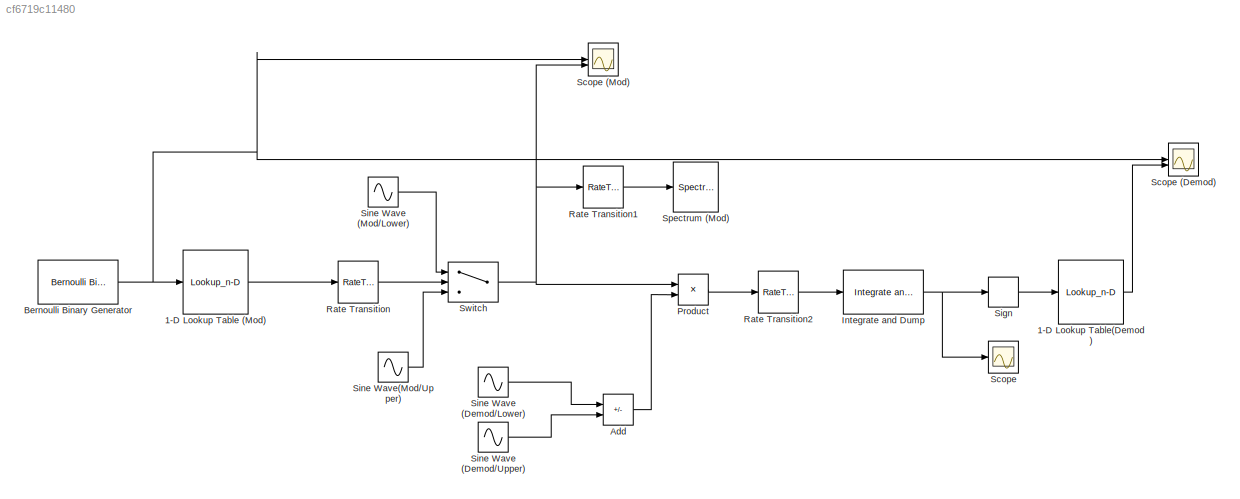
MODEL slx_cf6719c11480
KIND model
CONFIG AbsTol = auto
CONFIG EnableMultiTasking = off
CONFIG FixedStep = auto
CONFIG MaxStep = auto
CONFIG MinStep = auto
CONFIG RelTol = 1e-3
CONFIG SampleTimeConstraint = Unconstrained
CONFIG SolverName = VariableStepAuto
CONFIG StartTime = 0.0
CONFIG StopTime = 10.0
BLOCK [Lookup_n-D] 1-D Lookup Table (Mod)
  BreakpointsForDimension1 = [0,1]
  BreakpointsForDimension1FirstPoint = 10
  BreakpointsForDimension1Spacing = 12
  BreakpointsForDimension2FirstPoint = 10
  BreakpointsForDimension2Spacing = 12
  DiagnosticForOutOfRangeInput = Error
  IndexSearchMethod = Evenly spaced points
  InputPortMap = u0
  InternalRulePriority = Speed
  InterpMethod = Flat
  LookupTableObject = ''
  NumberOfTableDimensions = 1
  RndMeth = Simplest
  Table = [-1,1]
BLOCK [Lookup_n-D] 1-D Lookup Table(Demod)
  BreakpointsForDimension1 = [-1,0,1]
  BreakpointsForDimension1FirstPoint = 10
  BreakpointsForDimension1Spacing = 12
  BreakpointsForDimension2FirstPoint = 10
  BreakpointsForDimension2Spacing = 12
  DiagnosticForOutOfRangeInput = Error
  IndexSearchMethod = Evenly spaced points
  InputPortMap = u0
  InternalRulePriority = Speed
  InterpMethod = Flat
  LookupTableObject = ''
  NumberOfTableDimensions = 1
  RndMeth = Simplest
  Table = [0,0,1]
BLOCK [Sum] Add
  IconShape = rectangular
  Inputs = +-
BLOCK [Reference] Bernoulli Binary Generator  REF=commrandsrc3/Bernoulli Binary
Generator
  SourceBlock = commrandsrc3/Bernoulli Binary\nGenerator
  SourceType = Bernoulli Binary Generator
BLOCK [Reference] Integrate and Dump  REF=commfilt2/Integrate
and Dump
  SourceBlock = commfilt2/Integrate\nand Dump
  SourceType = Integrate and Dump
BLOCK [Product] Product
BLOCK [RateTransition] Rate Transition
  OutPortSampleTime = 0.5e-4
BLOCK [RateTransition] Rate Transition1
  OutPortSampleTime = 0.5e-4
BLOCK [RateTransition] Rate Transition2
  OutPortSampleTime = 0.5e-4
BLOCK [Scope] Scope 
  Floating = off
  NumInputPorts = 1
  ScopeSpecificationString = Simulink.scopes.TimeScopeBlockCfg('CurrentConfiguration', extmgr.ConfigurationSet(extmgr.Configuration('Core','General UI',true),extmgr.Configuration('Core','Source UI',true),extmgr.Configuration('Sources','WiredSimulink',true,'DataLoggingVariableName','ScopeData1'),extmgr.Configuration('Visuals','Time Domain',true),extmgr.Configuration('Tools','Plot Navigation',true),extmgr.Configuration('Tools',...<+40ch>
BLOCK [Scope] Scope (Demod)
  Floating = off
  NumInputPorts = 2
  ScopeSpecificationString = Simulink.scopes.TimeScopeBlockCfg('CurrentConfiguration', extmgr.ConfigurationSet(extmgr.Configuration('Core','General UI',true),extmgr.Configuration('Core','Source UI',true),extmgr.Configuration('Sources','WiredSimulink',true,'DataLoggingVariableName','ScopeData2'),extmgr.Configuration('Visuals','Time Domain',true),extmgr.Configuration('Tools','Plot Navigation',true),extmgr.Configuration('Tools',...<+40ch>
BLOCK [Scope] Scope (Mod)
  Floating = off
  NumInputPorts = 2
  ScopeSpecificationString = Simulink.scopes.TimeScopeBlockCfg('CurrentConfiguration', extmgr.ConfigurationSet(extmgr.Configuration('Core','General UI',true),extmgr.Configuration('Core','Source UI',true),extmgr.Configuration('Sources','WiredSimulink',true),extmgr.Configuration('Visuals','Time Domain',true,'SerializedDisplays',{struct('MinYLimReal','-1.25','MaxYLimReal','1.25','YLabelReal','','MinYLimMag','0.00000','MaxYLimMag...<+1512ch>
BLOCK [Signum] Sign
BLOCK [Sin] Sine Wave (Demod//Lower)
  SampleTime = 1e-7
  Samples = 4000
  SineType = Sample based
BLOCK [Sin] Sine Wave (Demod//Upper)
  SampleTime = 1e-7
  Samples = 2857
  SineType = Sample based
BLOCK [Sin] Sine Wave (Mod//Lower)
  SampleTime = 1e-7
  Samples = 4000
  SineType = Sample based
BLOCK [Sin] Sine Wave(Mod//Upper)
  SampleTime = 1e-7
  Samples = 2857
  SineType = Sample based
BLOCK [SpectrumAnalyzer] Spectrum (Mod)
  GraphicalSettings = {"GraphicalSettings":{"Style":{"BackgroundColor":[0.12941176470588237,0.12941176470588237,0.12941176470588237],"AxesColor":[0.07058823529411765,0.07058823529411765,0.07058823529411765],"LabelsColor":[0.8509803921568627,0.8509803921568627,0.8509803921568627],"PreserveColors":false,"Visible":[true],"LineStyle":["-"],"LineColor":[[1,0.9098039215686274,0.39215686274509803]],"LineWidth":[1.5],"Marker":...<+942ch>
  ScopeFrameLocation = window
  SelectedToolstripTab = spectrumAnalyzerToolstrip.channelMeasurementsTab
  WasSavedAsWebScope = on
  WindowPosition = [1.000000,49.000000,1280.000000,729.000000,]
  YLimits = [-66.41140469,27.6368463]
BLOCK [Switch] Switch
  Criteria = u2 > Threshold
  InputSameDT = off
  SaturateOnIntegerOverflow = off
LINE 1-D Lookup Table (Mod):1 -> Rate Transition:1
LINE 1-D Lookup Table(Demod):1 -> Scope (Demod):2
LINE Add:1 -> Product:2
NET Bernoulli Binary Generator:1 -> 1-D Lookup Table (Mod):1, Scope (Demod):1, Scope (Mod):1
NET Integrate and Dump:1 -> Scope :1, Sign:1
LINE Product:1 -> Rate Transition2:1
LINE Rate Transition1:1 -> Spectrum (Mod):1
LINE Rate Transition2:1 -> Integrate and Dump:1
LINE Rate Transition:1 -> Switch:2
LINE Sign:1 -> 1-D Lookup Table(Demod):1
LINE Sine Wave (Demod//Lower):1 -> Add:1
LINE Sine Wave (Demod//Upper):1 -> Add:2
LINE Sine Wave (Mod//Lower):1 -> Switch:1
LINE Sine Wave(Mod//Upper):1 -> Switch:3
NET Switch:1 -> Product:1, Rate Transition1:1, Scope (Mod):2
note: NET lines group one-source signal fan-out (src -> all destinations, sorted); 1:1 wires keep LINE
